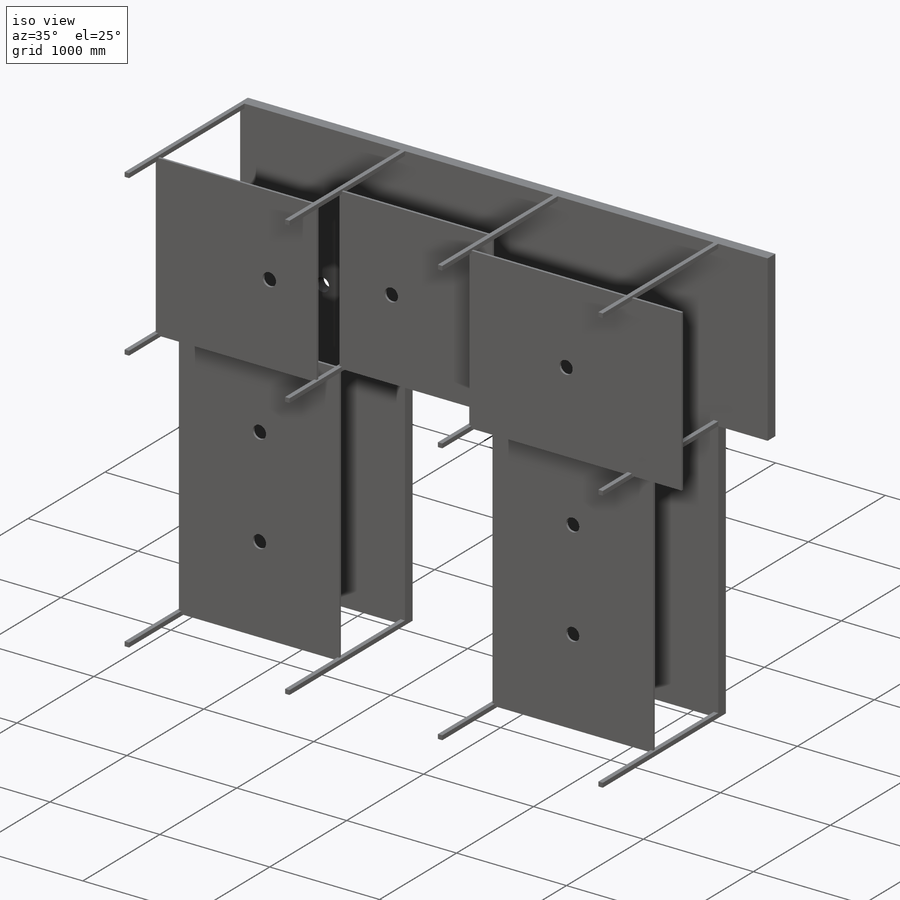
[diagram: iso view]
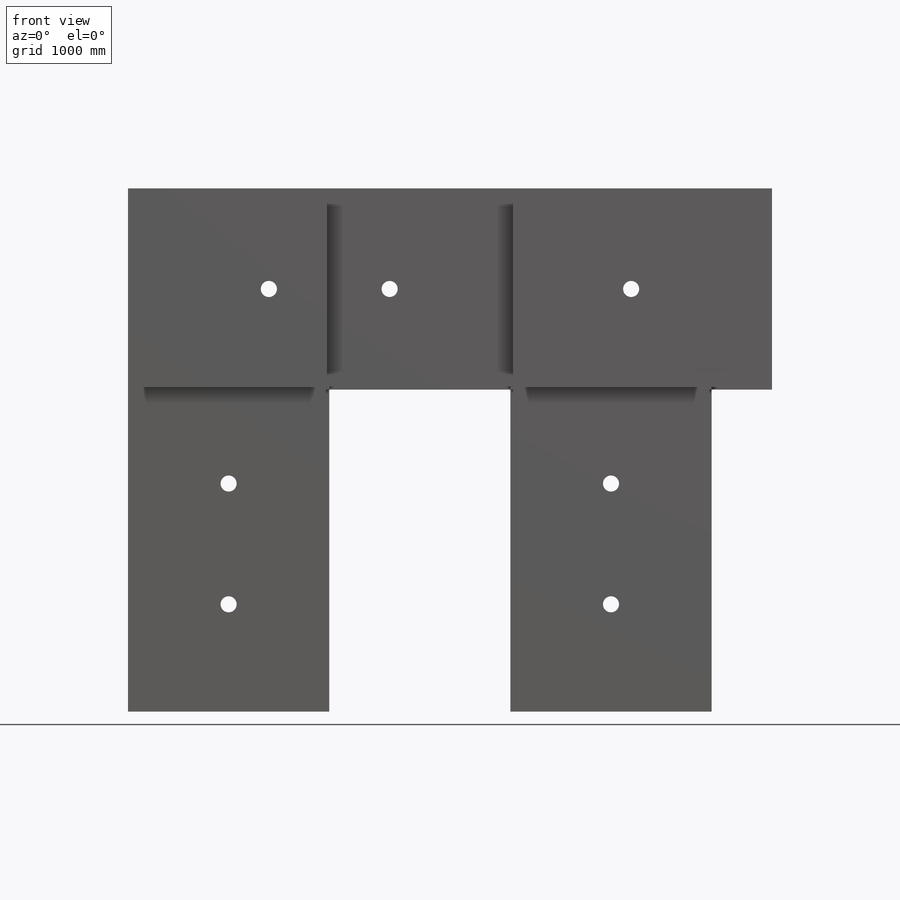
[diagram: front view]
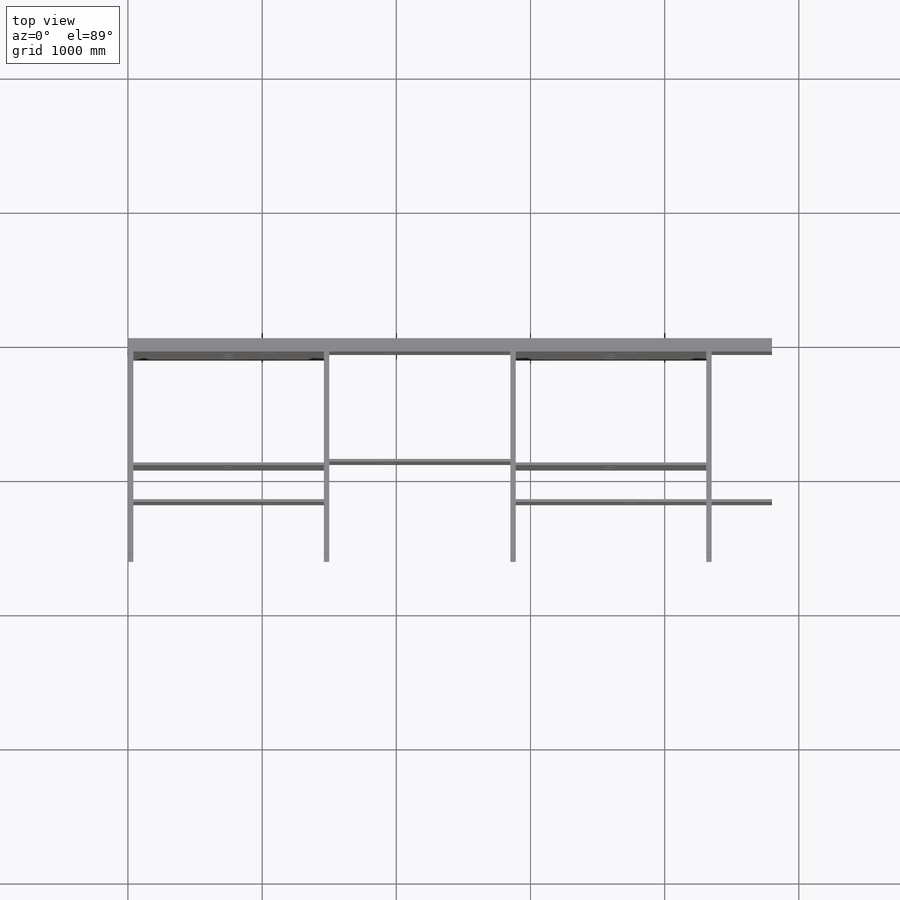
[diagram: top view]
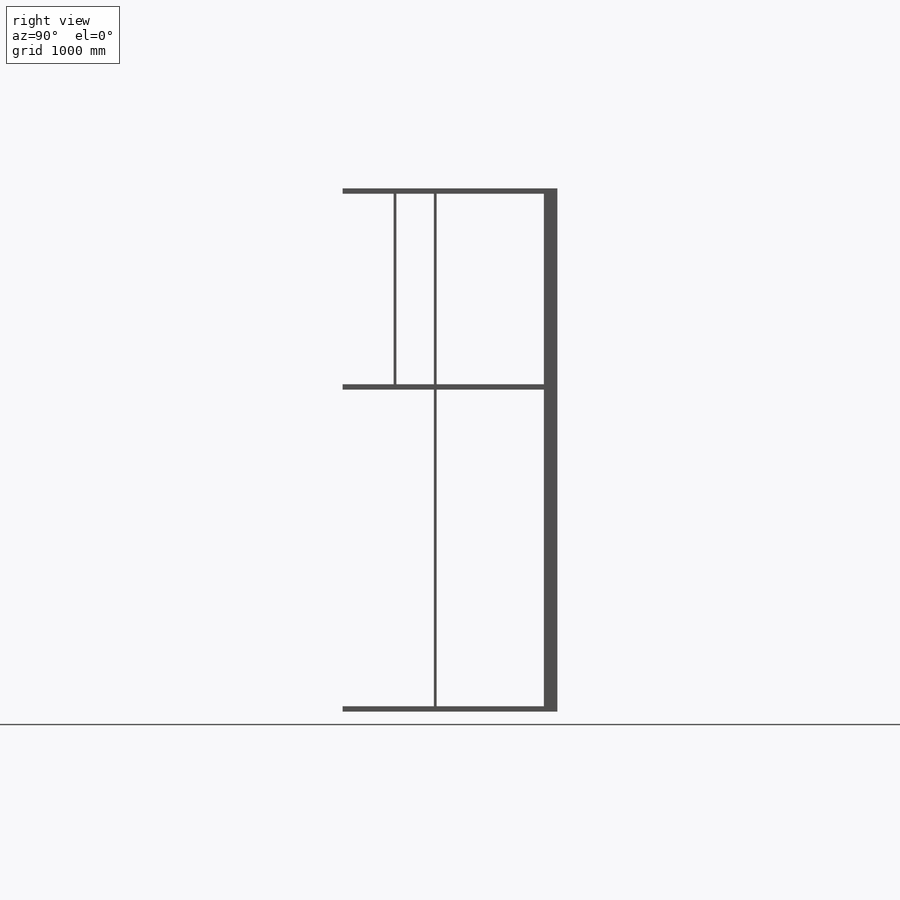
[diagram: right view]
SOLIDWORKS PART (.sldprt)
format: sldprt  version: not decoded by parser v0  size: 517,632 bytes
history: native  units: mm
features: sketch x5, extrude x4, plane x2, material x1, cut_extrude x1 (+12 scaffold rows collapsed)
feature tree (25):
  scaffold x12  (default folders/planes/origin — collapsed)
  material  "Material <not specified>"
  sketch  "Sketch1"  dims[c1.D8=~72.654891mm c1.D18=120.0mm c1.D19=100.0mm c1.D20=120.0mm c1.D21=100.0mm c1.D22=120.0mm c2.D19=120.0mm c2.D21=120.0mm c2.D24=120.0mm c2.D8=120.0mm c2.D10=120.0mm c2.D16=120.0mm c2.D17=120.0mm c3.D16=120.0mm c3.D17=120.0mm c3.D7=120.0mm c3.D11=120.0mm c3.D12=120.0mm c3.D8=120.0mm c3.D10=120.0mm c3.D15=120.0mm c3.D1=2400.0mm c3.D2=3900.0mm c3.D3=4780.0mm c3.D4=1350.0mm c3.D5=1500.0mm c3.D6=1500.0mm c4.D7=2390.0mm c4.D8=430.0mm c4.D6=450.0mm c5.D8=1930.0mm c5.D4=1500.0mm c6.D8=750.0mm c6.D9=600.0mm c6.D10=1200.0mm c6.D11=1200.0mm c6.D12=600.0mm c7.D10=600.0mm c7.D11=850.0mm c7.D12=750.0mm c7.D13=750.0mm c7.D14=750.0mm c7.D15=750.0mm c7.D16=600.0mm c7.D17=600.0mm c7.D3=1350.0mm c7.D6=4800.0mm c7.D23=700.0mm c7.D24=450.0mm c7.D7=1850.0mm c8.D10=50.0mm c8.D8=1275.0mm c9.D10=2325.0mm c9.D16=3375.0mm c9.D17=3500.0mm c9.D11=800.0mm c9.D12=750.0mm c9.D13=2850.0mm c9.D8=1050.0mm c10.D10=900.0mm c10.D15=750.0mm c10.D13=2.0 c10.D14=3.0 c10.D9=4.0]
  extrude  "Boss-Extrude1"  Depth=100mm
  sketch  "Sketch2"  dims[c1.D1=40.0mm c1.D2=40.0mm c1.D3=40.0mm c1.D4=40.0mm c1.D5=40.0mm c1.D6=40.0mm c1.D7=40.0mm c1.D8=40.0mm c1.D9=40.0mm c1.D10=40.0mm c1.D11=40.0mm c1.D12=40.0mm c1.D13=40.0mm c1.D14=40.0mm c1.D15=40.0mm c1.D16=40.0mm c1.D17=40.0mm c1.D18=40.0mm c1.D19=2015.0mm c1.D20=40.0mm c1.D21=40.0mm c1.D22=40.0mm c1.D23=40.0mm c1.D24=100.0mm c2.D19=40.0mm c2.D24=40.0mm]
  extrude  "Boss-Extrude2"  Depth=1500mm
  plane  "Plane2"  Offset=800mm
  sketch  "Sketch3"  dims[c1.D1=~2531.381393mm c1.D2=~1623.382258mm c2.D1=1460.0mm c2.D2=1430.0mm c3.D1=2400.0mm c3.D2=1460.0mm c4.D1=~1462.092014mm c4.D2=~1372.781635mm c5.D1=~37.215727mm c5.D2=~112.372127mm c6.D1=~2406.089345mm c6.D2=~1460.142153mm]
  plane  "Plane3"  Offset=300mm
  sketch  "Sketch5"  dims[c1.D1=1460.0mm c1.D2=1500.0mm c2.D1=1460.0mm c2.D2=1500.0mm]
  extrude  "Boss-Extrude5"  Depth=20mm
  extrude  "Boss-Extrude6"  Depth=20mm
  sketch  "Sketch6"  dims[D1=120.0mm]
  cut_extrude  "Cut-Extrude2"  [1 undecoded]
decode coverage: 9 of 10 modeling features carry decoded parameters
note: ~ marks probable driven/reference dimensions
note: 1 parameter value undecoded
note: suppression state not decoded; provenance and decode notes live in map.json
